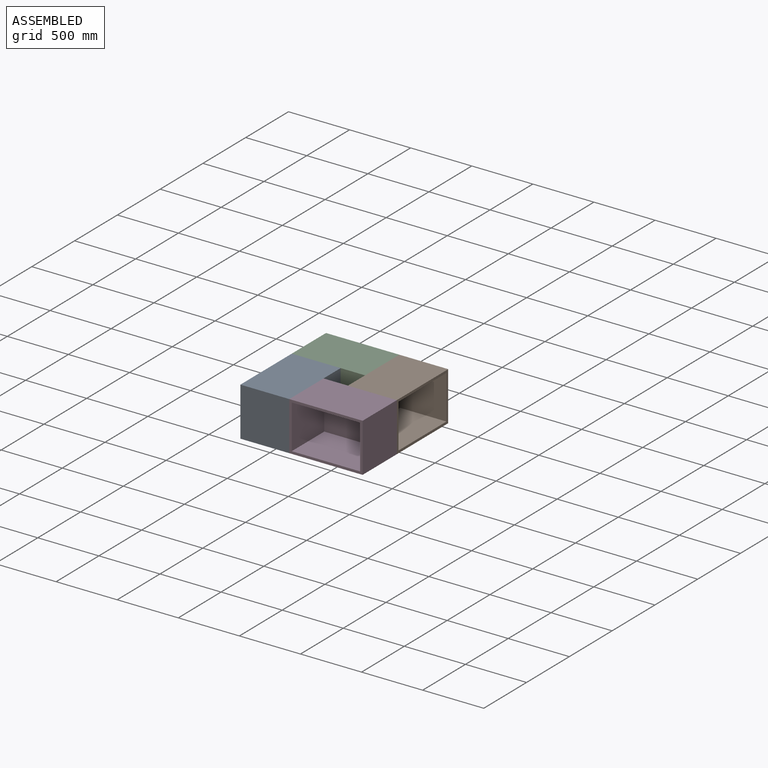
[diagram: assembled view]
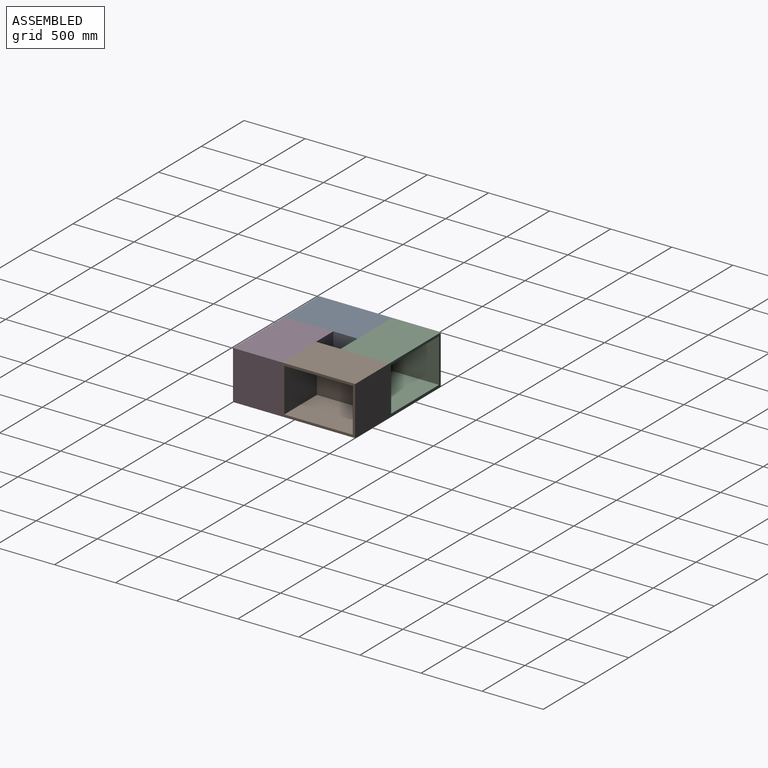
[diagram: assembled view, second angle]
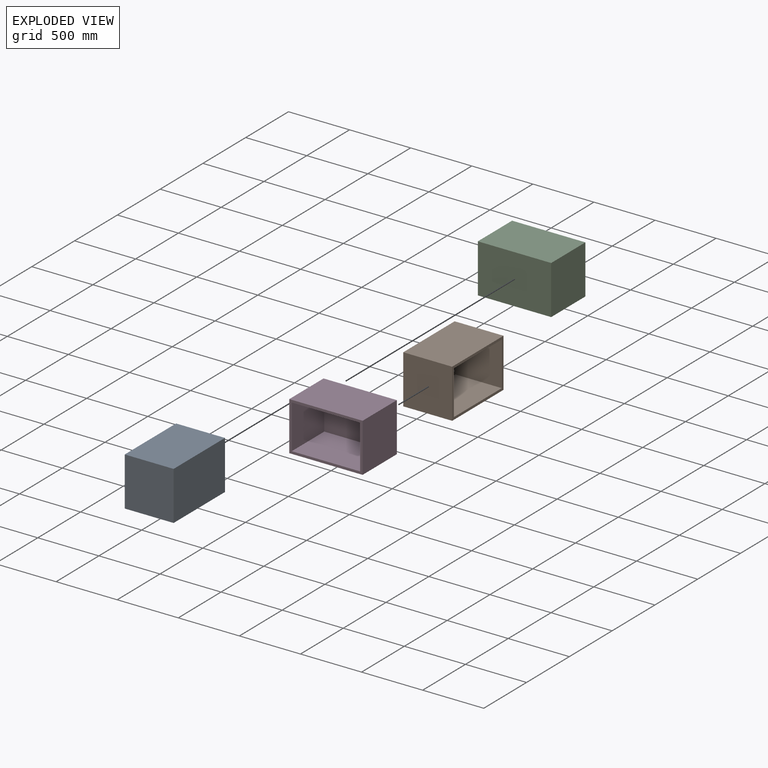
[diagram: exploded view]
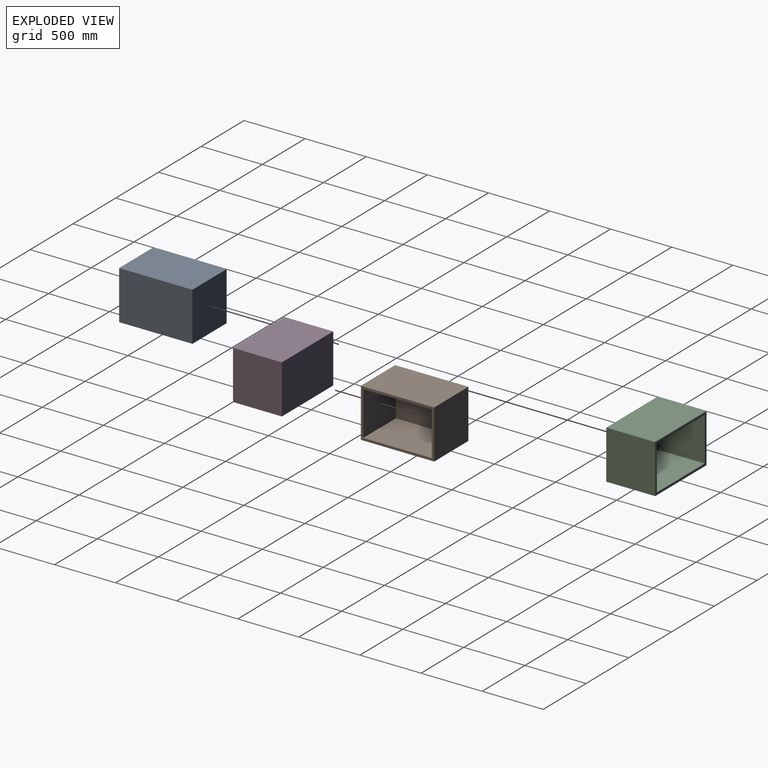
[diagram: exploded view, second angle]
ASSEMBLY  parts=4 mates=3
PART A: 11 faces, bbox 600x400x400 mm
  f0: plane 600x400mm, normal (0,0,1), area 38400mm2, adj f1,f2,f3,f4,f6,f7,f8,f9
  f1: plane 400x400mm, normal (1,0,0), area 160000mm2, adj f0,f2,f4,f5
  f2: plane 600x400mm, normal (0,1,0), area 240000mm2, adj f0,f1,f3,f5
  f3: plane 400x400mm, normal (-1,0,0), area 160000mm2, adj f0,f2,f4,f5
  f4: plane 600x400mm, normal (0,-1,0), area 240000mm2, adj f0,f1,f3,f5
  f5: plane 600x400mm, normal (0,0,-1), area 240000mm2, adj f1,f2,f3,f4
  f6: plane 380x360mm, normal (-1,0,0), area 136800mm2, adj f0,f7,f9,f10
  f7: plane 560x380mm, normal (0,-1,0), area 212800mm2, adj f0,f6,f8,f10
  f8: plane 380x360mm, normal (1,0,0), area 136800mm2, adj f0,f7,f9,f10
  f9: plane 560x380mm, normal (0,1,0), area 212800mm2, adj f0,f6,f8,f10
  f10: plane 560x360mm, normal (0,0,1), area 201600mm2, adj f6,f7,f8,f9
PART B: same geometry as A
PART C: same geometry as A
PART D: same geometry as A
PLACE A rot(axis=(-0.58,-0.58,0.58),120deg) t=(138.79,827.66,91.89)mm
PLACE B rot(axis=(-0.58,0.58,-0.58),120deg) t=(338.79,1227.66,91.89)mm
PLACE C rot(axis=(-1,0,0),90deg) t=(38.79,1127.66,91.89)mm fixed
PLACE D rot(axis=(0,-0.71,0.71),180deg) t=(438.79,927.66,91.89)mm
MATE fastened C.f5 <-> A.f1  axis (0,1,0) through (-61.21,1127.66,91.89)mm
MATE fastened B.f1 <-> D.f5  axis (0,-1,0) through (538.79,927.66,91.89)mm
MATE fastened D.f1 <-> A.f5  axis (-1,0,0) through (138.79,727.66,91.89)mm
